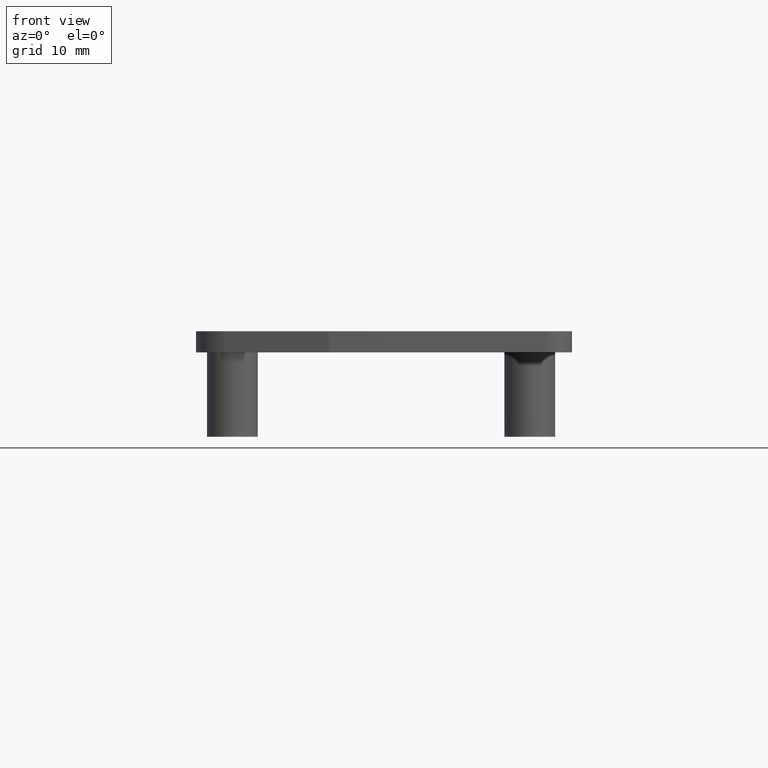
[diagram: clean part render]
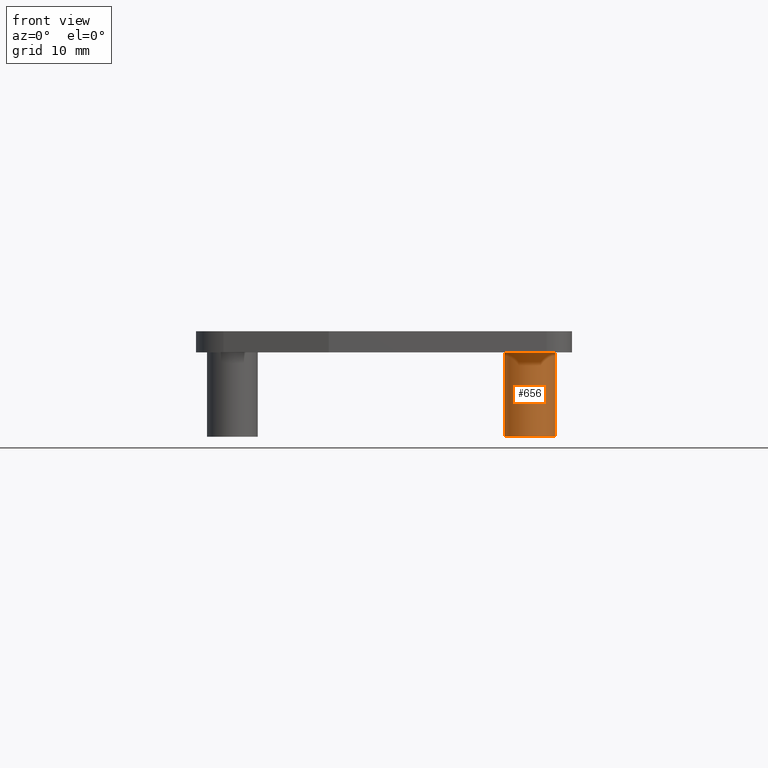
[diagram: same view with one face highlighted and labeled with its STEP entity id]
A machine part, front view. The second image highlights one B-rep face of the part: STEP entity #656.
In plain terms, the highlighted cylindrical surface (edge-blend (fillet) strip) has radius 3 mm, axis along (0, 0, -1).
Its self-contained STEP definition (entity closure, byte-faithful):
#33=CIRCLE('',#713,2.99999999999182);
#48=CIRCLE('',#745,2.99999999999182);
#64=CYLINDRICAL_SURFACE('',#744,2.99999999999182);
#98=FACE_OUTER_BOUND('',#143,.T.);
#143=EDGE_LOOP('',(#553,#554,#555,#556));
#203=LINE('',#1116,#261);
#205=LINE('',#1120,#263);
#261=VECTOR('',#914,10.);
#263=VECTOR('',#918,10.);
#299=VERTEX_POINT('',#1038);
#300=VERTEX_POINT('',#1039);
#325=VERTEX_POINT('',#1115);
#326=VERTEX_POINT('',#1119);
#369=EDGE_CURVE('',#299,#300,#33,.T.);
#404=EDGE_CURVE('',#299,#325,#203,.T.);
#406=EDGE_CURVE('',#300,#326,#205,.T.);
#407=EDGE_CURVE('',#325,#326,#48,.T.);
#553=ORIENTED_EDGE('',*,*,#404,.F.);
#554=ORIENTED_EDGE('',*,*,#369,.T.);
#555=ORIENTED_EDGE('',*,*,#406,.T.);
#556=ORIENTED_EDGE('',*,*,#407,.F.);
#656=ADVANCED_FACE('',(#98),#64,.T.);
#713=AXIS2_PLACEMENT_3D('',#1040,#832,#833);
#744=AXIS2_PLACEMENT_3D('',#1118,#916,#917);
#745=AXIS2_PLACEMENT_3D('',#1121,#919,#920);
#832=DIRECTION('center_axis',(0.,0.,-1.));
#833=DIRECTION('ref_axis',(1.,-1.509903E-13,0.));
#914=DIRECTION('',(0.,0.,-1.));
#916=DIRECTION('center_axis',(0.,0.,-1.));
#917=DIRECTION('ref_axis',(1.,-1.509903E-13,0.));
#918=DIRECTION('',(0.,0.,-1.));
#919=DIRECTION('center_axis',(0.,0.,-1.));
#920=DIRECTION('ref_axis',(1.,-1.509903E-13,0.));
#1038=CARTESIAN_POINT('',(42.4999999998345,-21.6059999999125,0.));
#1039=CARTESIAN_POINT('',(36.4999999998508,-21.6059999999125,0.));
#1040=CARTESIAN_POINT('Origin',(39.4999999998418,-21.6059999999125,0.));
#1115=CARTESIAN_POINT('',(42.4999999998345,-21.6059999999125,-10.));
#1116=CARTESIAN_POINT('',(42.4999999998345,-21.6059999999125,0.));
#1118=CARTESIAN_POINT('Origin',(39.4999999998418,-21.6059999999125,0.));
#1119=CARTESIAN_POINT('',(36.4999999998508,-21.6059999999125,-10.));
#1120=CARTESIAN_POINT('',(36.4999999998508,-21.6059999999125,0.));
#1121=CARTESIAN_POINT('Origin',(39.4999999998418,-21.6059999999125,-10.));